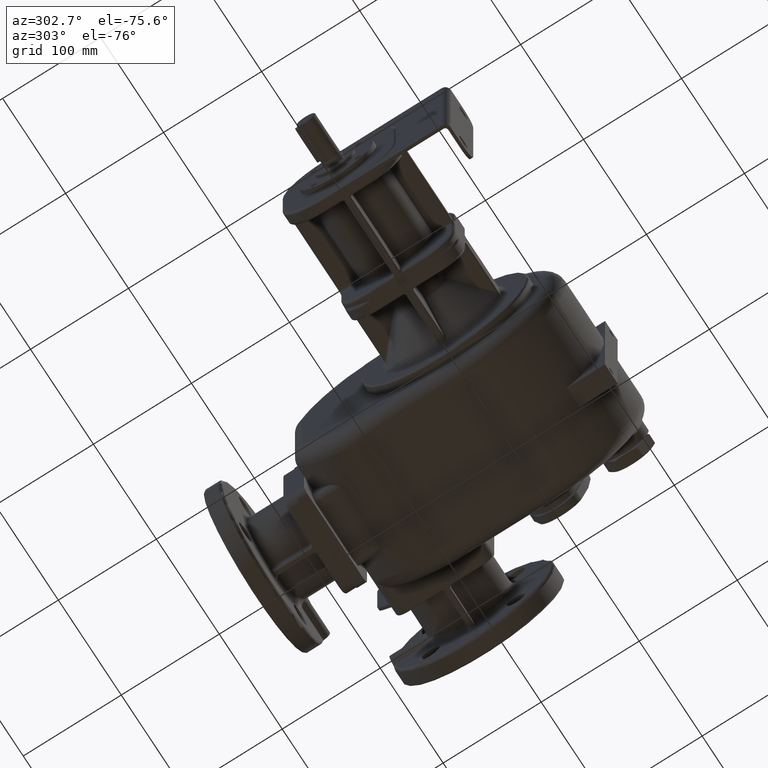
[diagram: clean part render]
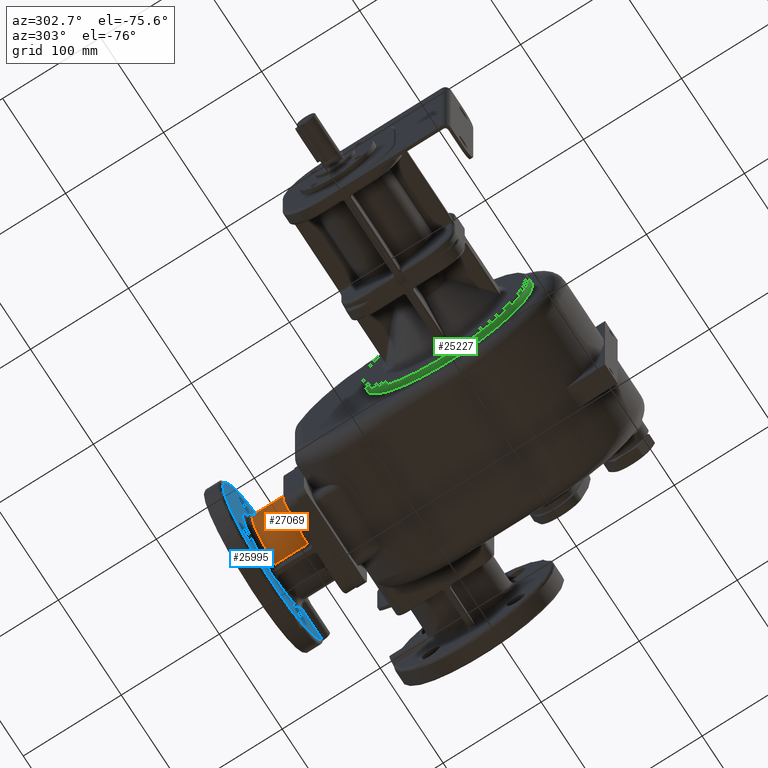
[diagram: same view with three faces highlighted in distinct colors, each labeled with its STEP entity id]
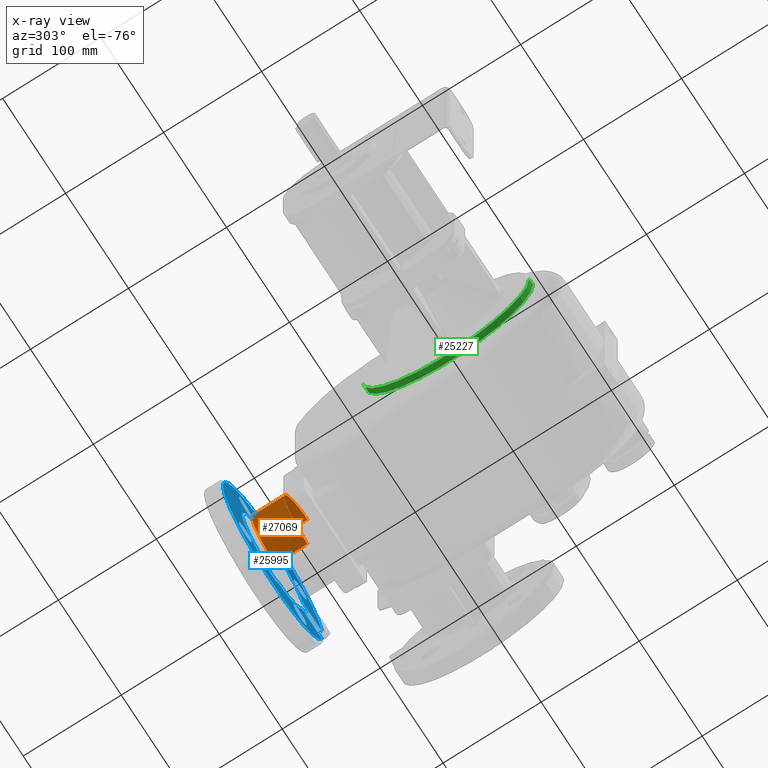
[diagram: x-ray of the same camera — body ghosted, the three highlighted faces saturated]
A machine part, auxiliary view with three faces highlighted in distinct colors.
The next image is the same camera in x-ray (body ghosted, the three faces saturated) — at least one of them is partly hidden behind the body in this view.
Their STEP definitions:

[orange] entity #27069 — the highlighted cylindrical surface (partial cylindrical patch) has radius 42.5 mm, axis along (0, 1, 0).
#7018=DIRECTION('',(6.999407114588E-9,-1.E0,-5.261495691716E-8));
#7019=VECTOR('',#7018,3.299999999964E1);
#7020=CARTESIAN_POINT('',(-1.560439583537E1,3.329999999999E2,
-2.871139391083E0));
#7021=LINE('',#7020,#7019);
#7022=CARTESIAN_POINT('',(-1.E1,3.E2,-4.5E1));
#7023=DIRECTION('',(0.E0,1.E0,0.E0));
#7024=DIRECTION('',(-1.318681318681E-1,0.E0,-9.912672675911E-1));
#7025=AXIS2_PLACEMENT_3D('',#7022,#7023,#7024);
#7027=DIRECTION('',(-6.999936145952E-9,1.E0,-5.261893482607E-8));
#7028=VECTOR('',#7027,3.299999999964E1);
#7029=CARTESIAN_POINT('',(-1.560439560439E1,3.000000000002E2,
-8.712885887262E1));
#7030=LINE('',#7029,#7028);
#7031=CARTESIAN_POINT('',(-1.E1,3.33E2,-4.5E1));
#7032=DIRECTION('',(0.E0,-1.E0,0.E0));
#7033=DIRECTION('',(-1.318681318681E-1,0.E0,9.912672675911E-1));
#7034=AXIS2_PLACEMENT_3D('',#7031,#7032,#7033);
#16373=CARTESIAN_POINT('',(-1.560439560440E1,3.E2,-2.871141127376E0));
#16375=VERTEX_POINT('',#16373);
#16377=CARTESIAN_POINT('',(-1.560439583537E1,3.329999999999E2,
-2.871139391083E0));
#16378=VERTEX_POINT('',#16377);
#16385=CARTESIAN_POINT('',(-1.560439560440E1,3.E2,-8.712885887262E1));
#16387=VERTEX_POINT('',#16385);
#16388=CARTESIAN_POINT('',(-1.560439583539E1,3.329999999999E2,
-8.712886060905E1));
#16389=VERTEX_POINT('',#16388);
#27055=CARTESIAN_POINT('',(-1.E1,2.8E2,-4.5E1));
#27056=DIRECTION('',(0.E0,1.E0,0.E0));
#27057=DIRECTION('',(0.E0,0.E0,1.E0));
#27058=AXIS2_PLACEMENT_3D('',#27055,#27056,#27057);
#27059=CYLINDRICAL_SURFACE('',#27058,4.25E1);
#27061=ORIENTED_EDGE('',*,*,#27060,.T.);
#27063=ORIENTED_EDGE('',*,*,#27062,.F.);
#27064=ORIENTED_EDGE('',*,*,#27046,.T.);
#27066=ORIENTED_EDGE('',*,*,#27065,.F.);
#27067=EDGE_LOOP('',(#27061,#27063,#27064,#27066));
#27068=FACE_OUTER_BOUND('',#27067,.F.);
#27069=ADVANCED_FACE('',(#27068),#27059,.T.);
#7026=CIRCLE('',#7025,4.25E1);
#7035=CIRCLE('',#7034,4.25E1);
#27046=EDGE_CURVE('',#16387,#16389,#7030,.T.);
#27060=EDGE_CURVE('',#16378,#16375,#7021,.T.);
#27062=EDGE_CURVE('',#16387,#16375,#7026,.T.);
#27065=EDGE_CURVE('',#16378,#16389,#7035,.T.);

[blue] entity #25995 — the highlighted planar face has unit normal (0, 1, 0).
#5993=DIRECTION('',(-1.E0,-3.247469142183E-8,-1.063454976807E-13));
#5994=VECTOR('',#5993,3.167010020128E1);
#5995=CARTESIAN_POINT('',(6.848088939353E1,3.389999994207E2,-3.231142245955E1));
#5996=LINE('',#5995,#5994);
#5997=DIRECTION('',(0.E0,3.038040273232E-7,1.E0));
#5998=VECTOR('',#5997,4.872565059420E0);
#5999=CARTESIAN_POINT('',(-4.E0,3.389999985197E2,3.127434940580E0));
#6000=LINE('',#5999,#5998);
#6001=DIRECTION('',(-1.E0,0.E0,0.E0));
#6002=VECTOR('',#6001,1.2E1);
#6003=CARTESIAN_POINT('',(-4.E0,3.39E2,8.E0));
#6004=LINE('',#6003,#6002);
#6005=DIRECTION('',(0.E0,-3.038219810606E-7,-1.E0));
#6006=VECTOR('',#6005,4.872565063593E0);
#6007=CARTESIAN_POINT('',(-1.6E1,3.39E2,8.E0));
#6008=LINE('',#6007,#6006);
#6009=DIRECTION('',(0.E0,3.038040270838E-7,-1.E0));
#6010=VECTOR('',#6009,4.872565063259E0);
#6011=CARTESIAN_POINT('',(-1.6E1,3.389999985197E2,-9.312743493674E1));
#6012=LINE('',#6011,#6010);
#6013=DIRECTION('',(1.E0,0.E0,0.E0));
#6014=VECTOR('',#6013,1.2E1);
#6015=CARTESIAN_POINT('',(-1.6E1,3.39E2,-9.8E1));
#6016=LINE('',#6015,#6014);
#6017=DIRECTION('',(0.E0,-3.038219813011E-7,1.E0));
#6018=VECTOR('',#6017,4.872565059736E0);
#6019=CARTESIAN_POINT('',(-4.E0,3.39E2,-9.8E1));
#6020=LINE('',#6019,#6018);
#6021=DIRECTION('',(1.E0,3.218803062670E-8,-1.032044914208E-13));
#6022=VECTOR('',#6021,3.167010020105E1);
#6023=CARTESIAN_POINT('',(3.681078919248E1,3.389999983997E2,-5.768857754045E1));
#6024=LINE('',#6023,#6022);
#6025=DIRECTION('',(7.071067811865E-1,0.E0,7.071067811865E-1));
#6026=VECTOR('',#6025,2.E0);
#6027=CARTESIAN_POINT('',(2.606244584051E1,3.39E2,4.497474683058E0));
#6028=LINE('',#6027,#6026);
#6029=CARTESIAN_POINT('',(3.277996026179E1,3.39E2,-2.220039738214E0));
#6030=DIRECTION('',(0.E0,1.E0,0.E0));
#6031=DIRECTION('',(7.071067811865E-1,0.E0,-7.071067811866E-1));
#6032=AXIS2_PLACEMENT_3D('',#6029,#6030,#6031);
#6034=DIRECTION('',(-7.071067811865E-1,0.E0,-7.071067811865E-1));
#6035=VECTOR('',#6034,2.E0);
#6036=CARTESIAN_POINT('',(4.091168824543E1,3.39E2,-7.523340597113E0));
#6037=LINE('',#6036,#6035);
#6038=CARTESIAN_POINT('',(3.419417382416E1,3.39E2,-8.058261758408E-1));
#6039=DIRECTION('',(0.E0,1.E0,0.E0));
#6040=DIRECTION('',(-7.071067811866E-1,0.E0,7.071067811865E-1));
#6041=AXIS2_PLACEMENT_3D('',#6038,#6039,#6040);
#6043=DIRECTION('',(7.071067811865E-1,0.E0,-7.071067811866E-1));
#6044=VECTOR('',#6043,2.E0);
#6045=CARTESIAN_POINT('',(3.949747468306E1,3.39E2,-8.106244584051E1));
#6046=LINE('',#6045,#6044);
#6047=CARTESIAN_POINT('',(3.277996026179E1,3.39E2,-8.777996026179E1));
#6048=DIRECTION('',(0.E0,1.E0,0.E0));
#6049=DIRECTION('',(-7.071067811866E-1,0.E0,-7.071067811865E-1));
#6050=AXIS2_PLACEMENT_3D('',#6047,#6048,#6049);
#6052=DIRECTION('',(-7.071067811865E-1,0.E0,7.071067811865E-1));
#6053=VECTOR('',#6052,2.E0);
#6054=CARTESIAN_POINT('',(2.747665940289E1,3.39E2,-9.591168824543E1));
#6055=LINE('',#6054,#6053);
#6056=CARTESIAN_POINT('',(3.419417382416E1,3.39E2,-8.919417382416E1));
#6057=DIRECTION('',(0.E0,1.E0,0.E0));
#6058=DIRECTION('',(7.071067811865E-1,0.E0,7.071067811866E-1));
#6059=AXIS2_PLACEMENT_3D('',#6056,#6057,#6058);
#6061=DIRECTION('',(-7.071067811866E-1,0.E0,-7.071067811865E-1));
#6062=VECTOR('',#6061,2.E0);
#6063=CARTESIAN_POINT('',(-4.606244584051E1,3.39E2,-9.449747468306E1));
#6064=LINE('',#6063,#6062);
#6065=CARTESIAN_POINT('',(-5.277996026179E1,3.39E2,-8.777996026179E1));
#6066=DIRECTION('',(0.E0,1.E0,0.E0));
#6067=DIRECTION('',(-7.071067811865E-1,0.E0,7.071067811866E-1));
#6068=AXIS2_PLACEMENT_3D('',#6065,#6066,#6067);
#6070=DIRECTION('',(7.071067811865E-1,0.E0,7.071067811865E-1));
#6071=VECTOR('',#6070,2.E0);
#6072=CARTESIAN_POINT('',(-6.091168824543E1,3.39E2,-8.247665940289E1));
#6073=LINE('',#6072,#6071);
#6074=CARTESIAN_POINT('',(-5.419417382416E1,3.39E2,-8.919417382416E1));
#6075=DIRECTION('',(0.E0,1.E0,0.E0));
#6076=DIRECTION('',(7.071067811865E-1,0.E0,-7.071067811865E-1));
#6077=AXIS2_PLACEMENT_3D('',#6074,#6075,#6076);
#6079=DIRECTION('',(-7.071067811865E-1,0.E0,7.071067811865E-1));
#6080=VECTOR('',#6079,2.E0);
#6081=CARTESIAN_POINT('',(-5.949747468306E1,3.39E2,-8.937554159486E0));
#6082=LINE('',#6081,#6080);
#6083=CARTESIAN_POINT('',(-5.277996026179E1,3.39E2,-2.220039738214E0));
#6084=DIRECTION('',(0.E0,1.E0,0.E0));
#6085=DIRECTION('',(7.071067811866E-1,0.E0,7.071067811865E-1));
#6086=AXIS2_PLACEMENT_3D('',#6083,#6084,#6085);
#6088=DIRECTION('',(7.071067811865E-1,0.E0,-7.071067811865E-1));
#6089=VECTOR('',#6088,2.E0);
#6090=CARTESIAN_POINT('',(-4.747665940289E1,3.39E2,5.911688245431E0));
#6091=LINE('',#6090,#6089);
#6092=CARTESIAN_POINT('',(-5.419417382416E1,3.39E2,-8.058261758408E-1));
#6093=DIRECTION('',(0.E0,1.E0,0.E0));
#6094=DIRECTION('',(-7.071067811865E-1,0.E0,-7.071067811865E-1));
#6095=AXIS2_PLACEMENT_3D('',#6092,#6093,#6094);
#6132=CARTESIAN_POINT('',(-1.E1,3.39E2,-4.5E1));
#6133=DIRECTION('',(0.E0,-1.E0,0.E0));
#6134=DIRECTION('',(9.871809986608E-1,0.E0,1.596047489365E-1));
#6135=AXIS2_PLACEMENT_3D('',#6132,#6133,#6134);
#6666=CARTESIAN_POINT('',(-4.E0,3.389999985196E2,-9.312743494026E1));
#6743=CARTESIAN_POINT('',(3.681078919248E1,3.389999983997E2,-5.768857754045E1));
#6745=CARTESIAN_POINT('',(-1.E1,3.39E2,-4.5E1));
#6746=DIRECTION('',(0.E0,1.E0,0.E0));
#6747=DIRECTION('',(9.651709136121E-1,0.E0,-2.616201588510E-1));
#6748=AXIS2_PLACEMENT_3D('',#6745,#6746,#6747);
#7389=CARTESIAN_POINT('',(-1.6E1,3.389999985196E2,3.127434936407E0));
#7465=CARTESIAN_POINT('',(-1.6E1,3.389999985197E2,-9.312743493674E1));
#7467=CARTESIAN_POINT('',(-1.E1,3.39E2,-4.5E1));
#7468=DIRECTION('',(0.E0,1.E0,0.E0));
#7469=DIRECTION('',(-1.237113408813E-1,0.E0,-9.923182474072E-1));
#7470=AXIS2_PLACEMENT_3D('',#7467,#7468,#7469);
#7668=CARTESIAN_POINT('',(-4.E0,3.389999985197E2,3.127434940580E0));
#7670=CARTESIAN_POINT('',(-1.E1,3.39E2,-4.5E1));
#7671=DIRECTION('',(0.E0,1.E0,0.E0));
#7672=DIRECTION('',(1.237113408424E-1,0.E0,9.923182474121E-1));
#7673=AXIS2_PLACEMENT_3D('',#7670,#7671,#7672);
#7675=CARTESIAN_POINT('',(3.681078919225E1,3.389999983922E2,-3.231142245955E1));
#16294=CARTESIAN_POINT('',(2.606244584051E1,3.39E2,4.497474683058E0));
#16295=VERTEX_POINT('',#16294);
#16296=CARTESIAN_POINT('',(2.747665940289E1,3.39E2,5.911688245431E0));
#16297=VERTEX_POINT('',#16296);
#16298=CARTESIAN_POINT('',(4.091168824543E1,3.39E2,-7.523340597113E0));
#16299=VERTEX_POINT('',#16298);
#16300=CARTESIAN_POINT('',(3.949747468306E1,3.39E2,-8.937554159486E0));
#16301=VERTEX_POINT('',#16300);
#16310=CARTESIAN_POINT('',(3.949747468306E1,3.39E2,-8.106244584051E1));
#16311=VERTEX_POINT('',#16310);
#16312=CARTESIAN_POINT('',(4.091168824543E1,3.39E2,-8.247665940289E1));
#16313=VERTEX_POINT('',#16312);
#16314=CARTESIAN_POINT('',(2.747665940289E1,3.39E2,-9.591168824543E1));
#16315=VERTEX_POINT('',#16314);
#16316=CARTESIAN_POINT('',(2.606244584051E1,3.39E2,-9.449747468306E1));
#16317=VERTEX_POINT('',#16316);
#16326=CARTESIAN_POINT('',(-4.606244584051E1,3.39E2,-9.449747468306E1));
#16327=VERTEX_POINT('',#16326);
#16328=CARTESIAN_POINT('',(-4.747665940289E1,3.39E2,-9.591168824543E1));
#16329=VERTEX_POINT('',#16328);
#16330=CARTESIAN_POINT('',(-6.091168824543E1,3.39E2,-8.247665940289E1));
#16331=VERTEX_POINT('',#16330);
#16332=CARTESIAN_POINT('',(-5.949747468306E1,3.39E2,-8.106244584051E1));
#16333=VERTEX_POINT('',#16332);
#16342=CARTESIAN_POINT('',(-5.949747468306E1,3.39E2,-8.937554159486E0));
#16343=VERTEX_POINT('',#16342);
#16344=CARTESIAN_POINT('',(-6.091168824543E1,3.39E2,-7.523340597113E0));
#16345=VERTEX_POINT('',#16344);
#16346=CARTESIAN_POINT('',(-4.747665940289E1,3.39E2,5.911688245431E0));
#16347=VERTEX_POINT('',#16346);
#16348=CARTESIAN_POINT('',(-4.606244584051E1,3.39E2,4.497474683058E0));
#16349=VERTEX_POINT('',#16348);
#16355=VERTEX_POINT('',#6743);
#16360=VERTEX_POINT('',#7675);
#16372=VERTEX_POINT('',#7668);
#16383=VERTEX_POINT('',#7389);
#16394=VERTEX_POINT('',#7465);
#16405=VERTEX_POINT('',#6666);
#16486=CARTESIAN_POINT('',(-1.6E1,3.39E2,-9.8E1));
#16487=CARTESIAN_POINT('',(-4.E0,3.39E2,-9.8E1));
#16488=VERTEX_POINT('',#16486);
#16489=VERTEX_POINT('',#16487);
#16490=CARTESIAN_POINT('',(-4.E0,3.39E2,8.E0));
#16491=VERTEX_POINT('',#16490);
#16492=CARTESIAN_POINT('',(-1.6E1,3.39E2,8.E0));
#16493=VERTEX_POINT('',#16492);
#16504=CARTESIAN_POINT('',(6.848088939353E1,3.39E2,-3.231142245955E1));
#16505=CARTESIAN_POINT('',(6.848088939353E1,3.39E2,-5.768857754045E1));
#16506=VERTEX_POINT('',#16504);
#16507=VERTEX_POINT('',#16505);
#25925=CARTESIAN_POINT('',(-1.E1,3.39E2,-4.5E1));
#25926=DIRECTION('',(0.E0,1.E0,0.E0));
#25927=DIRECTION('',(0.E0,0.E0,1.E0));
#25928=AXIS2_PLACEMENT_3D('',#25925,#25926,#25927);
#25929=PLANE('',#25928);
#25931=ORIENTED_EDGE('',*,*,#25930,.F.);
#25933=ORIENTED_EDGE('',*,*,#25932,.T.);
#25935=ORIENTED_EDGE('',*,*,#25934,.F.);
#25937=ORIENTED_EDGE('',*,*,#25936,.T.);
#25938=ORIENTED_EDGE('',*,*,#25912,.T.);
#25940=ORIENTED_EDGE('',*,*,#25939,.T.);
#25942=ORIENTED_EDGE('',*,*,#25941,.F.);
#25944=ORIENTED_EDGE('',*,*,#25943,.T.);
#25946=ORIENTED_EDGE('',*,*,#25945,.T.);
#25948=ORIENTED_EDGE('',*,*,#25947,.T.);
#25950=ORIENTED_EDGE('',*,*,#25949,.F.);
#25952=ORIENTED_EDGE('',*,*,#25951,.T.);
#25953=EDGE_LOOP('',(#25931,#25933,#25935,#25937,#25938,#25940,#25942,#25944,
#25946,#25948,#25950,#25952));
#25954=FACE_OUTER_BOUND('',#25953,.F.);
#25956=ORIENTED_EDGE('',*,*,#25955,.F.);
#25958=ORIENTED_EDGE('',*,*,#25957,.F.);
#25960=ORIENTED_EDGE('',*,*,#25959,.F.);
#25962=ORIENTED_EDGE('',*,*,#25961,.F.);
#25963=EDGE_LOOP('',(#25956,#25958,#25960,#25962));
#25964=FACE_BOUND('',#25963,.F.);
#25966=ORIENTED_EDGE('',*,*,#25965,.F.);
#25968=ORIENTED_EDGE('',*,*,#25967,.F.);
#25970=ORIENTED_EDGE('',*,*,#25969,.F.);
#25972=ORIENTED_EDGE('',*,*,#25971,.F.);
#25973=EDGE_LOOP('',(#25966,#25968,#25970,#25972));
#25974=FACE_BOUND('',#25973,.F.);
#25976=ORIENTED_EDGE('',*,*,#25975,.F.);
#25978=ORIENTED_EDGE('',*,*,#25977,.F.);
#25980=ORIENTED_EDGE('',*,*,#25979,.F.);
#25982=ORIENTED_EDGE('',*,*,#25981,.F.);
#25983=EDGE_LOOP('',(#25976,#25978,#25980,#25982));
#25984=FACE_BOUND('',#25983,.F.);
#25986=ORIENTED_EDGE('',*,*,#25985,.F.);
#25988=ORIENTED_EDGE('',*,*,#25987,.F.);
#25990=ORIENTED_EDGE('',*,*,#25989,.F.);
#25992=ORIENTED_EDGE('',*,*,#25991,.F.);
#25993=EDGE_LOOP('',(#25986,#25988,#25990,#25992));
#25994=FACE_BOUND('',#25993,.F.);
#25995=ADVANCED_FACE('',(#25954,#25964,#25974,#25984,#25994),#25929,.F.);
#6033=CIRCLE('',#6032,9.5E0);
#6042=CIRCLE('',#6041,9.5E0);
#6051=CIRCLE('',#6050,9.5E0);
#6060=CIRCLE('',#6059,9.5E0);
#6069=CIRCLE('',#6068,9.5E0);
#6078=CIRCLE('',#6077,9.5E0);
#6087=CIRCLE('',#6086,9.5E0);
#6096=CIRCLE('',#6095,9.5E0);
#6136=CIRCLE('',#6135,7.95E1);
#6749=CIRCLE('',#6748,4.85E1);
#7471=CIRCLE('',#7470,4.85E1);
#7674=CIRCLE('',#7673,4.85E1);
#25912=EDGE_CURVE('',#16491,#16493,#6004,.T.);
#25930=EDGE_CURVE('',#16506,#16507,#6136,.T.);
#25932=EDGE_CURVE('',#16506,#16360,#5996,.T.);
#25934=EDGE_CURVE('',#16372,#16360,#7674,.T.);
#25936=EDGE_CURVE('',#16372,#16491,#6000,.T.);
#25939=EDGE_CURVE('',#16493,#16383,#6008,.T.);
#25941=EDGE_CURVE('',#16394,#16383,#7471,.T.);
#25943=EDGE_CURVE('',#16394,#16488,#6012,.T.);
#25945=EDGE_CURVE('',#16488,#16489,#6016,.T.);
#25947=EDGE_CURVE('',#16489,#16405,#6020,.T.);
#25949=EDGE_CURVE('',#16355,#16405,#6749,.T.);
#25951=EDGE_CURVE('',#16355,#16507,#6024,.T.);
#25955=EDGE_CURVE('',#16295,#16297,#6028,.T.);
#25957=EDGE_CURVE('',#16301,#16295,#6033,.T.);
#25959=EDGE_CURVE('',#16299,#16301,#6037,.T.);
#25961=EDGE_CURVE('',#16297,#16299,#6042,.T.);
#25965=EDGE_CURVE('',#16311,#16313,#6046,.T.);
#25967=EDGE_CURVE('',#16317,#16311,#6051,.T.);
#25969=EDGE_CURVE('',#16315,#16317,#6055,.T.);
#25971=EDGE_CURVE('',#16313,#16315,#6060,.T.);
#25975=EDGE_CURVE('',#16327,#16329,#6064,.T.);
#25977=EDGE_CURVE('',#16333,#16327,#6069,.T.);
#25979=EDGE_CURVE('',#16331,#16333,#6073,.T.);
#25981=EDGE_CURVE('',#16329,#16331,#6078,.T.);
#25985=EDGE_CURVE('',#16343,#16345,#6082,.T.);
#25987=EDGE_CURVE('',#16349,#16343,#6087,.T.);
#25989=EDGE_CURVE('',#16347,#16349,#6091,.T.);
#25991=EDGE_CURVE('',#16345,#16347,#6096,.T.);

[green] entity #25227 — the highlighted cylindrical surface (partial cylindrical patch) has radius 85 mm, axis along (-1, 0, 0).
#5343=CARTESIAN_POINT('',(-9.15E1,1.1E2,0.E0));
#5344=DIRECTION('',(1.E0,0.E0,0.E0));
#5345=DIRECTION('',(0.E0,-1.E0,0.E0));
#5346=AXIS2_PLACEMENT_3D('',#5343,#5344,#5345);
#5348=DIRECTION('',(1.E0,0.E0,6.894484370694E-13));
#5349=VECTOR('',#5348,6.E0);
#5350=CARTESIAN_POINT('',(-9.15E1,2.5E1,-1.039816415703E-13));
#5351=LINE('',#5350,#5349);
#5352=CARTESIAN_POINT('',(-8.55E1,1.1E2,0.E0));
#5353=DIRECTION('',(1.E0,0.E0,0.E0));
#5354=DIRECTION('',(0.E0,-1.E0,0.E0));
#5355=AXIS2_PLACEMENT_3D('',#5352,#5353,#5354);
#5357=DIRECTION('',(1.E0,0.E0,-6.903033384822E-13));
#5358=VECTOR('',#5357,6.E0);
#5359=CARTESIAN_POINT('',(-9.15E1,1.95E2,9.995183530189E-14));
#5360=LINE('',#5359,#5358);
#15937=CARTESIAN_POINT('',(-8.55E1,1.95E2,-2.946696267873E-14));
#15938=CARTESIAN_POINT('',(-8.55E1,2.5E1,3.950911353679E-14));
#15939=VERTEX_POINT('',#15937);
#15940=VERTEX_POINT('',#15938);
#15965=CARTESIAN_POINT('',(-9.15E1,1.95E2,-3.113554394256E-14));
#15966=CARTESIAN_POINT('',(-9.15E1,2.5E1,4.044290672114E-14));
#15967=VERTEX_POINT('',#15965);
#15968=VERTEX_POINT('',#15966);
#25214=CARTESIAN_POINT('',(-7.91E1,1.1E2,0.E0));
#25215=DIRECTION('',(-1.E0,0.E0,0.E0));
#25216=DIRECTION('',(0.E0,1.E0,0.E0));
#25217=AXIS2_PLACEMENT_3D('',#25214,#25215,#25216);
#25218=CYLINDRICAL_SURFACE('',#25217,8.5E1);
#25220=ORIENTED_EDGE('',*,*,#25219,.F.);
#25221=ORIENTED_EDGE('',*,*,#25209,.T.);
#25223=ORIENTED_EDGE('',*,*,#25222,.T.);
#25224=ORIENTED_EDGE('',*,*,#25205,.F.);
#25225=EDGE_LOOP('',(#25220,#25221,#25223,#25224));
#25226=FACE_OUTER_BOUND('',#25225,.F.);
#25227=ADVANCED_FACE('',(#25226),#25218,.T.);
#5347=CIRCLE('',#5346,8.5E1);
#5356=CIRCLE('',#5355,8.5E1);
#25205=EDGE_CURVE('',#15967,#15939,#5360,.T.);
#25209=EDGE_CURVE('',#15968,#15940,#5351,.T.);
#25219=EDGE_CURVE('',#15968,#15967,#5347,.T.);
#25222=EDGE_CURVE('',#15940,#15939,#5356,.T.);